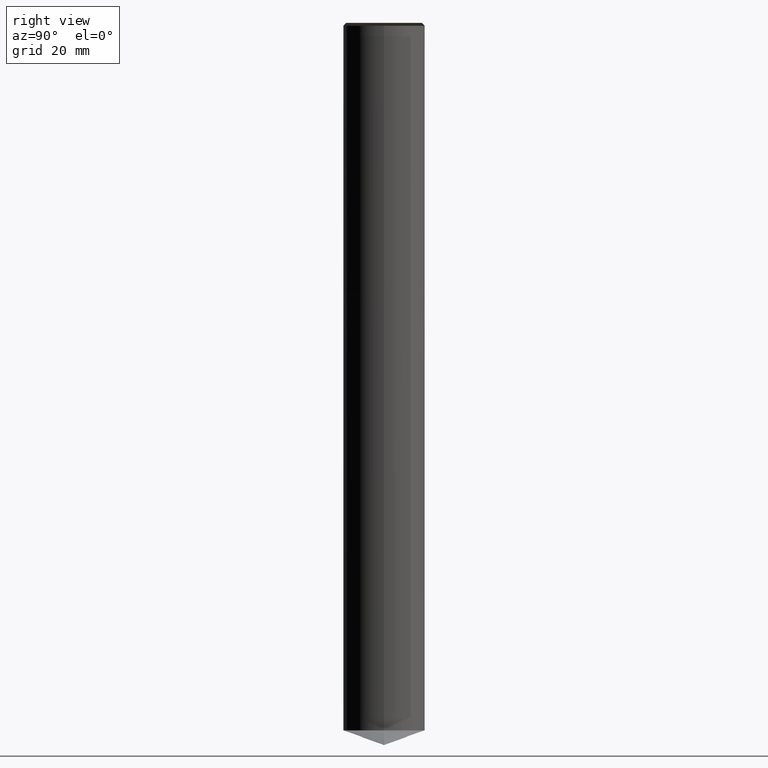
[diagram: clean part render]
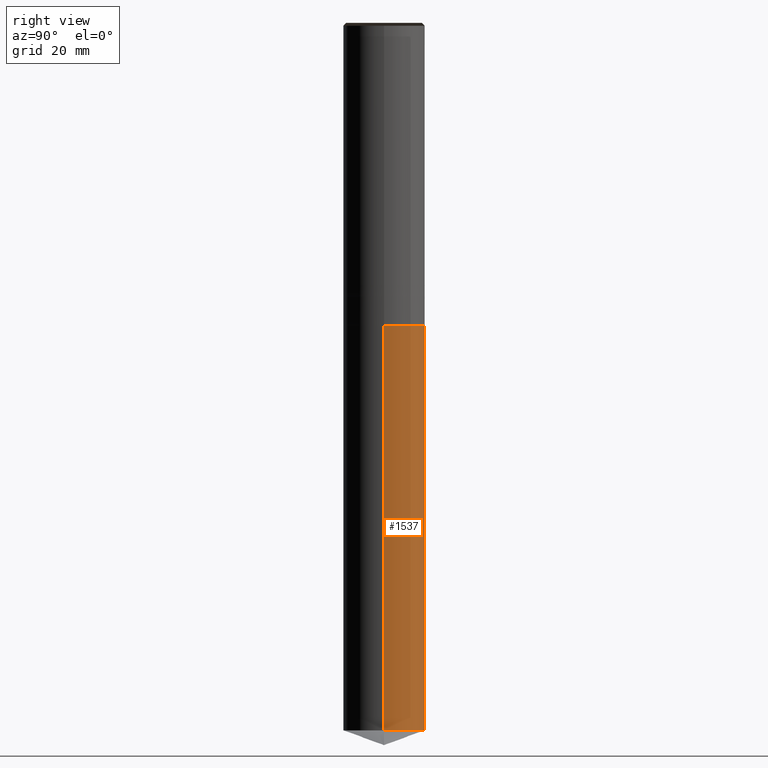
[diagram: same view with one face highlighted and labeled with its STEP entity id]
A machine part, right view. The second image highlights one B-rep face of the part: STEP entity #1537.
In plain terms, the highlighted face is a freeform B-spline surface patch.
Its self-contained STEP definition (entity closure, byte-faithful):
#1447=CARTESIAN_POINT('',(7.0,0.0,-76.452208360137));
#1448=CARTESIAN_POINT('',(7.0,7.0,-76.452208360137));
#1449=CARTESIAN_POINT('',(0.0,7.0,-76.452208360137));
#1450=CARTESIAN_POINT('',(-7.0,7.0,-76.452208360137));
#1451=CARTESIAN_POINT('',(-7.0,0.0,-76.452208360137));
#1452=CARTESIAN_POINT('',(7.0,0.0,-7.0));
#1453=CARTESIAN_POINT('',(7.0,7.0,-7.0));
#1454=CARTESIAN_POINT('',(0.0,7.0,-7.0));
#1455=CARTESIAN_POINT('',(-7.0,7.0,-7.0));
#1456=CARTESIAN_POINT('',(-7.0,0.0,-7.0));
#1518=(
BOUNDED_SURFACE()
B_SPLINE_SURFACE(1,2,(
(#1447,#1448,#1449,#1450,#1451),
(#1452,#1453,#1454,#1455,#1456)
), .UNSPECIFIED.,.F.,.F.,.F.)
B_SPLINE_SURFACE_WITH_KNOTS((2,2),(3,2,3),(
0.0,1.0),(
0.0,0.5,1.0), .UNSPECIFIED.)
GEOMETRIC_REPRESENTATION_ITEM()
RATIONAL_B_SPLINE_SURFACE(((1.0,0.707106781187,1.0,0.707106781187,1.0),
(1.0,0.707106781187,1.0,0.707106781187,1.0)
))
REPRESENTATION_ITEM('')
SURFACE()
);
#1519=(
BOUNDED_CURVE()
B_SPLINE_CURVE(2,(#1451,#1450,#1449,#1448,#1447),.UNSPECIFIED.,.F.,.F.)
B_SPLINE_CURVE_WITH_KNOTS((3,2,3),
(0.0,0.5,1.0),.UNSPECIFIED.)
CURVE()
GEOMETRIC_REPRESENTATION_ITEM()
RATIONAL_B_SPLINE_CURVE((1.0,0.707106781187,1.0,0.707106781187,1.0))
REPRESENTATION_ITEM('')
);
#1520=(
BOUNDED_CURVE()
B_SPLINE_CURVE(1,(#1447,#1452),.UNSPECIFIED.,.F.,.F.)
B_SPLINE_CURVE_WITH_KNOTS((2,2),
(0.0,1.0),.UNSPECIFIED.)
CURVE()
GEOMETRIC_REPRESENTATION_ITEM()
RATIONAL_B_SPLINE_CURVE((1.0,1.0))
REPRESENTATION_ITEM('')
);
#1521=(
BOUNDED_CURVE()
B_SPLINE_CURVE(2,(#1452,#1453,#1454,#1455,#1456),.UNSPECIFIED.,.F.,.F.)
B_SPLINE_CURVE_WITH_KNOTS((3,2,3),
(0.0,0.5,1.0),.UNSPECIFIED.)
CURVE()
GEOMETRIC_REPRESENTATION_ITEM()
RATIONAL_B_SPLINE_CURVE((1.0,0.707106781187,1.0,0.707106781187,1.0))
REPRESENTATION_ITEM('')
);
#1522=(
BOUNDED_CURVE()
B_SPLINE_CURVE(1,(#1456,#1451),.UNSPECIFIED.,.F.,.F.)
B_SPLINE_CURVE_WITH_KNOTS((2,2),
(0.0,1.0),.UNSPECIFIED.)
CURVE()
GEOMETRIC_REPRESENTATION_ITEM()
RATIONAL_B_SPLINE_CURVE((1.0,1.0))
REPRESENTATION_ITEM('')
);
#1523=VERTEX_POINT('',#1447);
#1524=VERTEX_POINT('',#1451);
#1525=VERTEX_POINT('',#1452);
#1526=VERTEX_POINT('',#1456);
#1527=EDGE_CURVE('',#1524,#1523,#1519,.T.);
#1528=EDGE_CURVE('',#1523,#1525,#1520,.T.);
#1529=EDGE_CURVE('',#1525,#1526,#1521,.T.);
#1530=EDGE_CURVE('',#1526,#1524,#1522,.T.);
#1531=ORIENTED_EDGE('',*,*,#1527,.T.);
#1532=ORIENTED_EDGE('',*,*,#1528,.T.);
#1533=ORIENTED_EDGE('',*,*,#1529,.T.);
#1534=ORIENTED_EDGE('',*,*,#1530,.T.);
#1535=EDGE_LOOP('',(#1531,#1532,#1533,#1534));
#1536=FACE_OUTER_BOUND('',#1535,.T.);
#1537=ADVANCED_FACE('',(#1536),#1518,.T.);